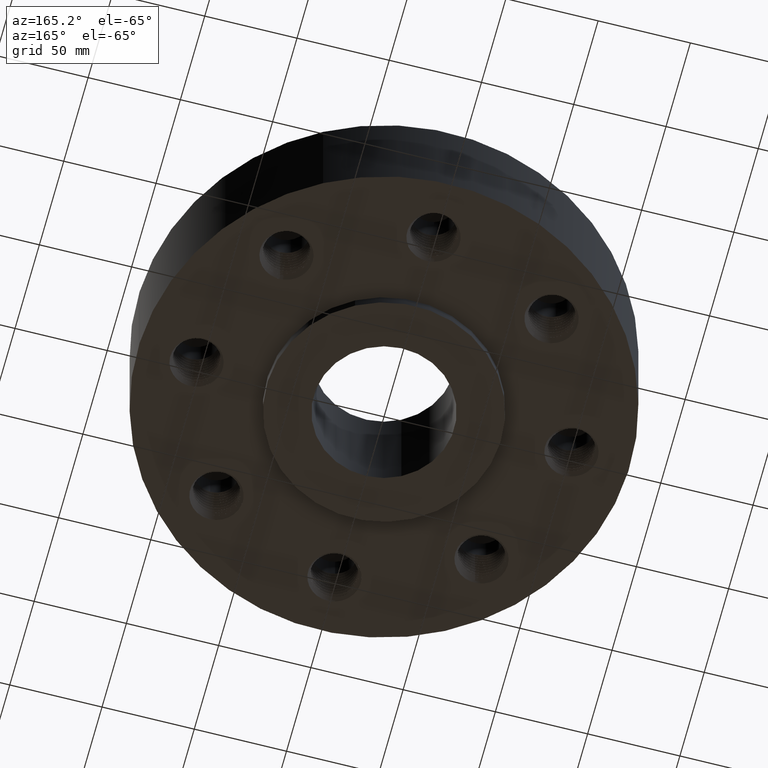
[diagram: clean part render]
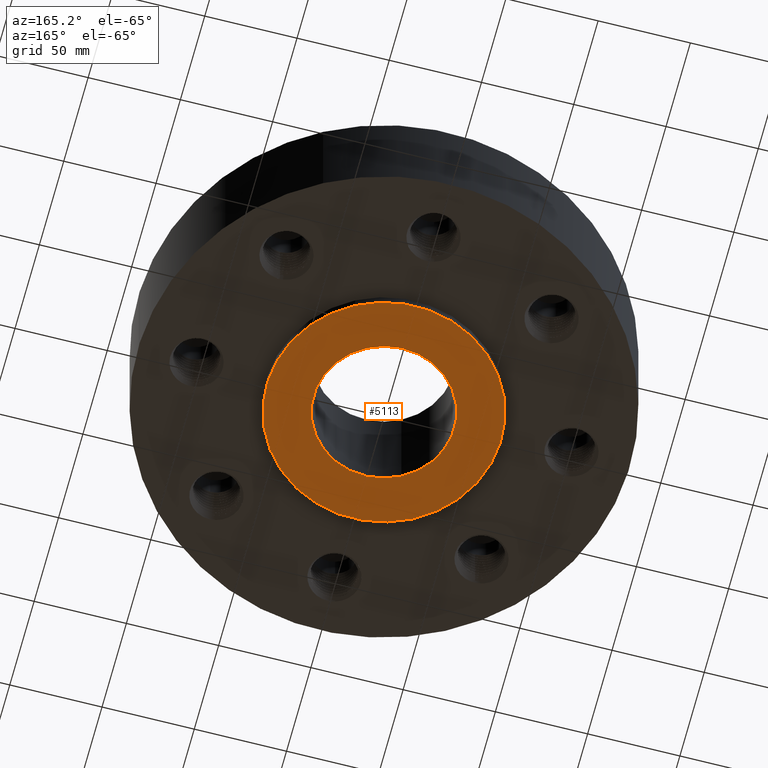
[diagram: same view with one face highlighted and labeled with its STEP entity id]
A machine part, auxiliary view. The second image highlights one B-rep face of the part: STEP entity #5113.
In plain terms, the highlighted planar face has unit normal (0, 0, -1).
Its self-contained STEP definition (entity closure, byte-faithful):
#4126=AXIS2_PLACEMENT_3D('Circle Axis2P3D',#4124,#4125,$) ;
#4152=AXIS2_PLACEMENT_3D('Circle Axis2P3D',#4150,#4151,$) ;
#5089=AXIS2_PLACEMENT_3D('Plane Axis2P3D',#5086,#5087,#5088) ;
#5097=AXIS2_PLACEMENT_3D('Circle Axis2P3D',#5095,#5096,$) ;
#5106=AXIS2_PLACEMENT_3D('Circle Axis2P3D',#5104,#5105,$) ;
#4124=CARTESIAN_POINT('Axis2P3D Location',(0.,0.,-0.250000000001)) ;
#4128=CARTESIAN_POINT('Vertex',(1.19856384652,2.19395640473,-0.250000000001)) ;
#4130=CARTESIAN_POINT('Vertex',(-1.19856384652,-2.19395640473,-0.250000000001)) ;
#4150=CARTESIAN_POINT('Axis2P3D Location',(0.,0.,-0.250000000001)) ;
#5086=CARTESIAN_POINT('Axis2P3D Location',(0.,2.50000000001,-0.250000000001)) ;
#5095=CARTESIAN_POINT('Axis2P3D Location',(0.,0.,-0.250000000001)) ;
#5099=CARTESIAN_POINT('Vertex',(0.719138307909,1.31637384284,-0.250000000001)) ;
#5101=CARTESIAN_POINT('Vertex',(-0.719138307909,-1.31637384284,-0.250000000001)) ;
#5104=CARTESIAN_POINT('Axis2P3D Location',(0.,0.,-0.250000000001)) ;
#4125=DIRECTION('Axis2P3D Direction',(0.,0.,-0.0393700787402)) ;
#4151=DIRECTION('Axis2P3D Direction',(0.,0.,-0.0393700787402)) ;
#5087=DIRECTION('Axis2P3D Direction',(0.,0.,-0.0393700787402)) ;
#5088=DIRECTION('Axis2P3D XDirection',(0.0393700787402,0.,0.)) ;
#5096=DIRECTION('Axis2P3D Direction',(0.,0.,-0.0393700787402)) ;
#5105=DIRECTION('Axis2P3D Direction',(0.,0.,-0.0393700787402)) ;
#5092=ORIENTED_EDGE('',*,*,#4154,.T.) ;
#5093=ORIENTED_EDGE('',*,*,#4132,.T.) ;
#5110=ORIENTED_EDGE('',*,*,#5103,.F.) ;
#5111=ORIENTED_EDGE('',*,*,#5108,.F.) ;
#5112=FACE_BOUND('',#5109,.T.) ;
#5113=ADVANCED_FACE('PartBody',(#5094,#5112),#5090,.T.) ;
#4127=CIRCLE('generated circle',#4126,2.50000000001) ;
#4153=CIRCLE('generated circle',#4152,2.50000000001) ;
#5098=CIRCLE('generated circle',#5097,1.50000000001) ;
#5107=CIRCLE('generated circle',#5106,1.50000000001) ;
#4132=EDGE_CURVE('',#4129,#4131,#4127,.T.) ;
#4154=EDGE_CURVE('',#4131,#4129,#4153,.T.) ;
#5103=EDGE_CURVE('',#5100,#5102,#5098,.T.) ;
#5108=EDGE_CURVE('',#5102,#5100,#5107,.T.) ;
#5091=EDGE_LOOP('',(#5092,#5093)) ;
#5109=EDGE_LOOP('',(#5110,#5111)) ;
#5094=FACE_OUTER_BOUND('',#5091,.T.) ;
#5090=PLANE('',#5089) ;
#4129=VERTEX_POINT('',#4128) ;
#4131=VERTEX_POINT('',#4130) ;
#5100=VERTEX_POINT('',#5099) ;
#5102=VERTEX_POINT('',#5101) ;